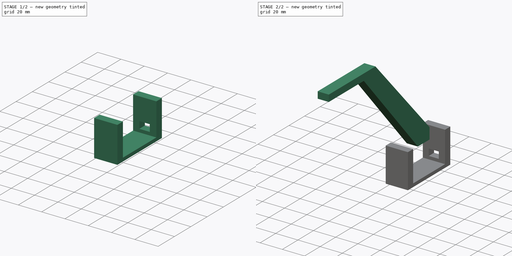
[diagram: build sequence overview — one tinted view per stage of 2, left to right]
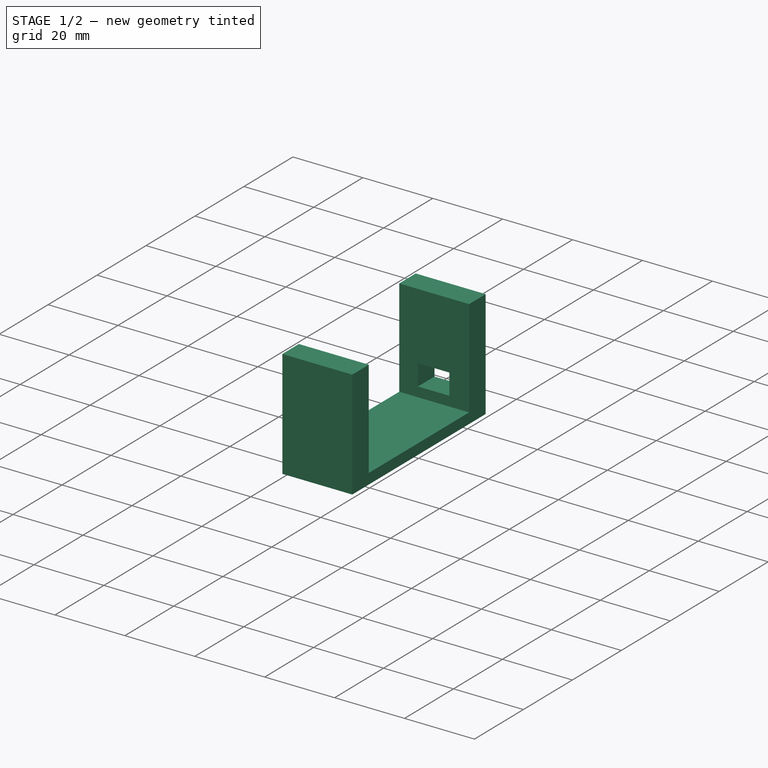
[diagram: stage 1 of 2 — iso view after this stage's code; geometry added in this stage tinted green]
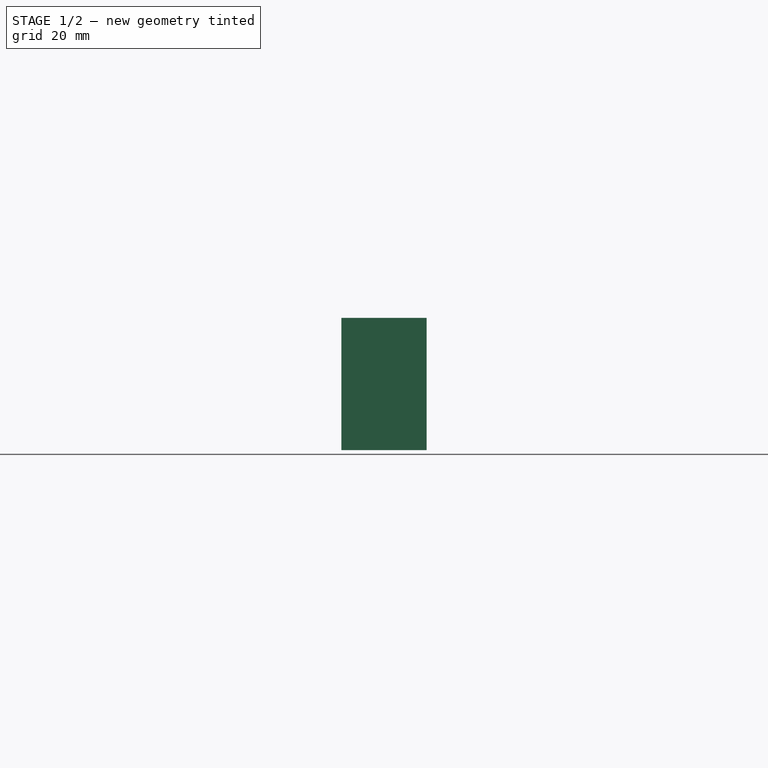
[diagram: stage 1 of 2 — front view after this stage's code; geometry added in this stage tinted green]
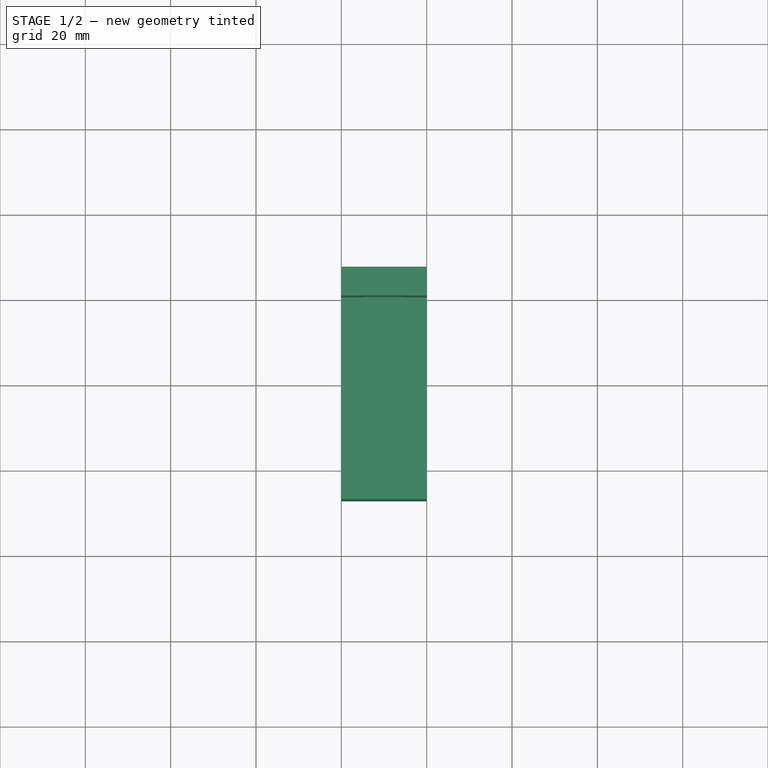
[diagram: stage 1 of 2 — top view after this stage's code; geometry added in this stage tinted green]
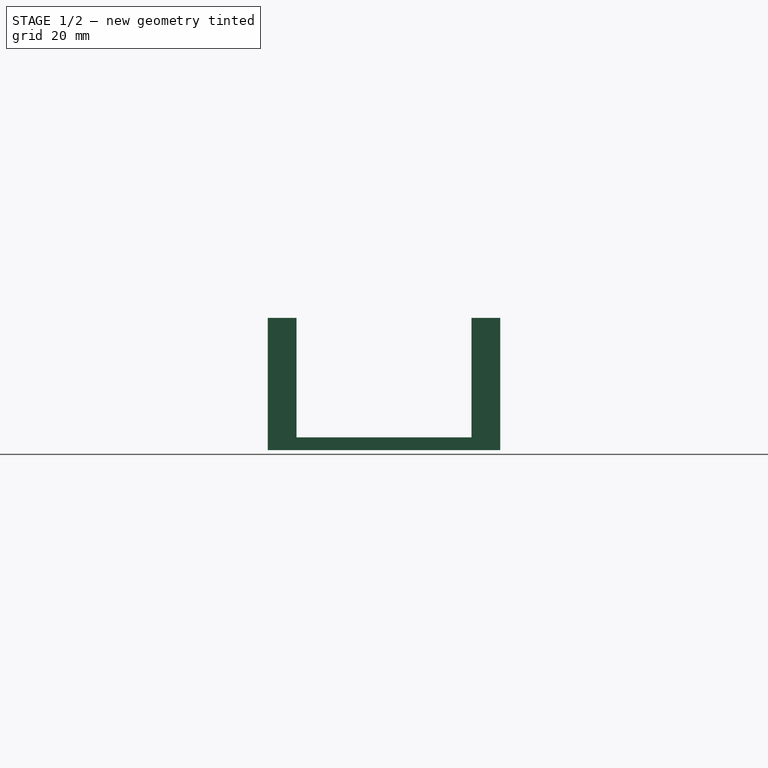
[diagram: stage 1 of 2 — right view after this stage's code; geometry added in this stage tinted green]
FCSTD DOCUMENT  (FreeCAD 0.19R24366 (Git))
Label: internalstructure_v2
License: All rights reserved
LicenseURL: http://en.wikipedia.org/wiki/All_rights_reserved
objects: Sketcher::SketchObject×4, PartDesign::Pad×2, PartDesign::Body×2, App::Part×2, PartDesign::Pocket×2
note: 14 computed .brp shape members not serialized (recipe doc carries the construction recipe); baked Part::Feature solids carry a one-line shape summary decoded from their .brp

FEATURE [PartDesign::Body] Body  label="TriangleConnectorBody"
  Group = -> [Sketch,Pad]
  Origin = -> Origin001
  Tip = -> Pad
FEATURE [App::Part] Part  label="TriangleConnector"
  Group = -> [Body]
  Origin = -> Origin
FEATURE [Sketcher::SketchObject] Sketch001  label="ServoHolder"
  FullyConstrained = false
  MapMode = 4
  Placement = pos=(0,0,0) rot=(0.57735,0.57735,0.57735;2.0944rad)
  sketch-geometry (8):
    g0: LineSegment StartX=-27.0989 StartY=-22.5482 StartZ=0 EndX=27.4011 EndY=-22.5482 EndZ=0
    g1: LineSegment StartX=20.6511 StartY=-19.5482 StartZ=0 EndX=20.6511 EndY=8.45178 EndZ=0
    g2: LineSegment StartX=20.6511 StartY=8.45178 StartZ=0 EndX=27.4011 EndY=8.45178 EndZ=0
    g3: LineSegment StartX=-20.3489 StartY=-19.5482 StartZ=0 EndX=-20.3489 EndY=8.45178 EndZ=0
    g4: LineSegment StartX=-20.3489 StartY=8.45178 StartZ=0 EndX=-27.0989 EndY=8.45178 EndZ=0
    g5: LineSegment StartX=20.6511 StartY=-19.5482 StartZ=0 EndX=-20.3489 EndY=-19.5482 EndZ=0
    g6: LineSegment StartX=-27.0989 StartY=8.45178 StartZ=0 EndX=-27.0989 EndY=-22.5482 EndZ=0
    g7: LineSegment StartX=27.4011 StartY=8.45178 StartZ=0 EndX=27.4011 EndY=-22.5482 EndZ=0
  constraints (22):
    c: Horizontal(g0)
    c: Coincident(g1,g2)
    c: Horizontal(g2)
    c: Vertical(g1)
    c: Coincident(g3,g4)
    c: Horizontal(g4)
    c: Vertical(g3)
    c: Coincident(g5,g1)
    c: Coincident(g5,g3)
    c: Horizontal(g5)
    c: Coincident(g6,g4)
    c: Coincident(g6,g0)
    c: Vertical(g6)
    c: Coincident(g7,g2)
    c: Coincident(g7,g0)
    c: Vertical(g7)
    c: DistanceX(g0,g0) = 54.5
    c: DistanceX(g5,g5) = 41
    c: Equal(g4,g2)
    c: Horizontal(g3,g1)
    c: DistanceY(g0,g1) = 3
    c: DistanceY(g1,g1) = 28
FEATURE [PartDesign::Pad] Pad001  label="ExtrudeServoHolder"
  Direction = (1,1,1)
  Length = 20
  Length2 = 100
  Placement = pos=(0,0,0) rot=(0.57735,0.57735,0.57735;2.0944rad)
  Profile = -> Sketch001
  Type = 0
FEATURE [Sketcher::SketchObject] Sketch003  label="WireHoleSketch"
  FullyConstrained = false
  Placement = pos=(0,27.4011,0) rot=(0,0.707107,0.707107;3.14159rad)
  sketch-geometry (4):
    g0: LineSegment StartX=-5.36505 StartY=-10.7623 StartZ=0 EndX=-14.3651 EndY=-10.7623 EndZ=0
    g1: LineSegment StartX=-14.3651 StartY=-10.7623 StartZ=0 EndX=-14.3651 EndY=-16.7623 EndZ=0
    g2: LineSegment StartX=-14.3651 StartY=-16.7623 StartZ=0 EndX=-5.36505 EndY=-16.7623 EndZ=0
    g3: LineSegment StartX=-5.36505 StartY=-16.7623 StartZ=0 EndX=-5.36505 EndY=-10.7623 EndZ=0
  constraints (10):
    c: Coincident(g1,g2)
    c: Coincident(g2,g3)
    c: Coincident(g3,g0)
    c: Horizontal(g0)
    c: Horizontal(g2)
    c: Vertical(g1)
    c: Vertical(g3)
    c: Coincident(g1,g0)
    c: DistanceX(g0,g0) = 9
    c: DistanceY(g1,g1) = 6
FEATURE [PartDesign::Pocket] Pocket  label="ServoHolder001"
  BaseFeature = -> Pad001
  Length = 8
  Length2 = 100
  Placement = pos=(0,0,0) rot=(0.57735,0.57735,0.57735;2.0944rad)
  Profile = -> Sketch003
  Type = 0
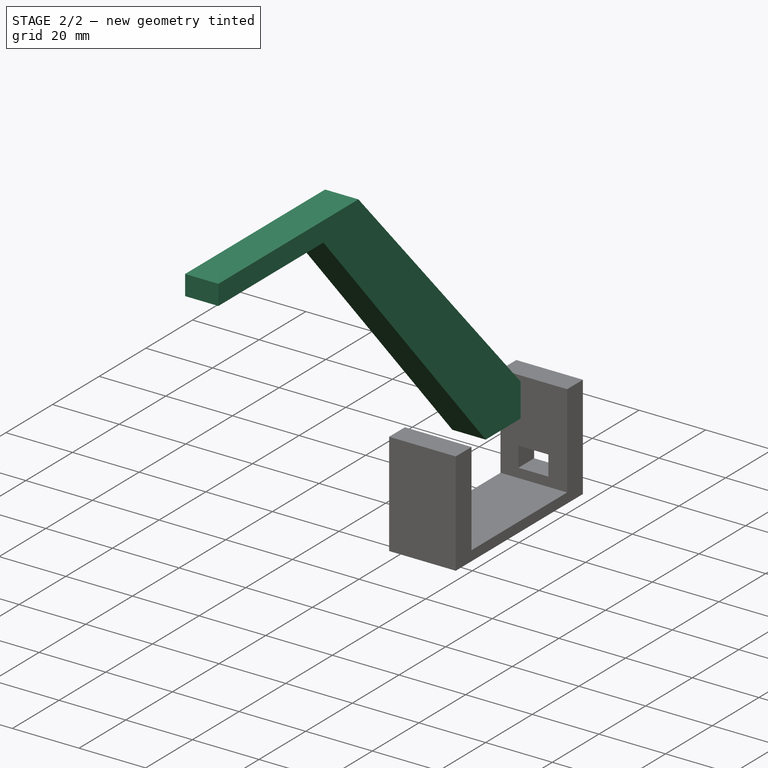
[diagram: stage 2 of 2 — iso view after this stage's code; geometry added in this stage tinted green]
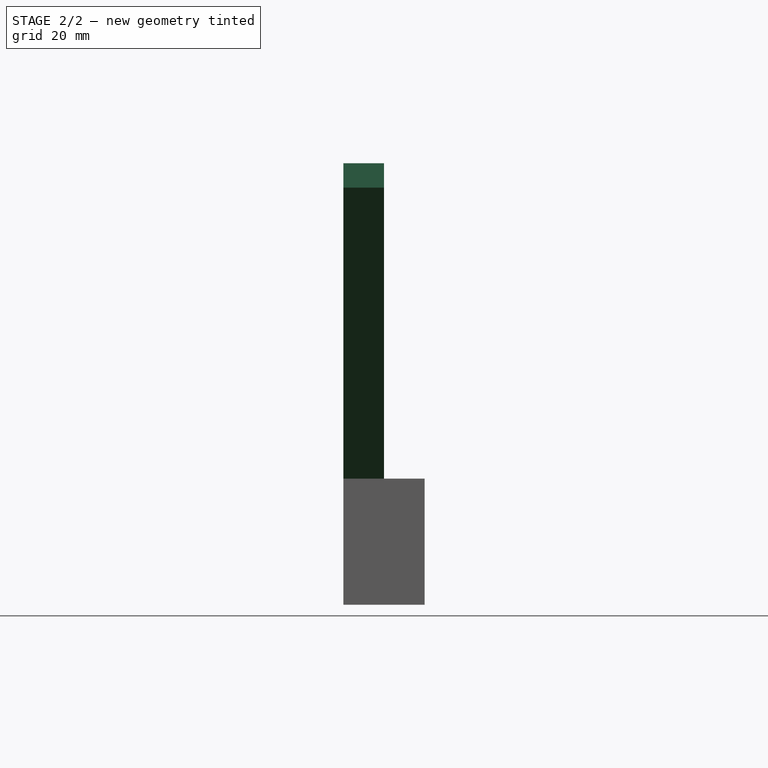
[diagram: stage 2 of 2 — front view after this stage's code; geometry added in this stage tinted green]
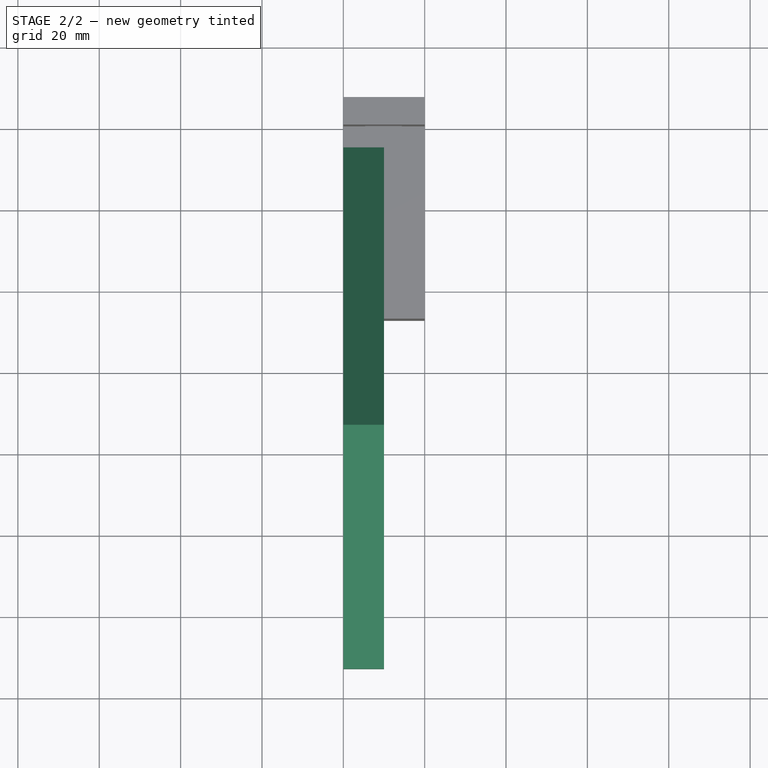
[diagram: stage 2 of 2 — top view after this stage's code; geometry added in this stage tinted green]
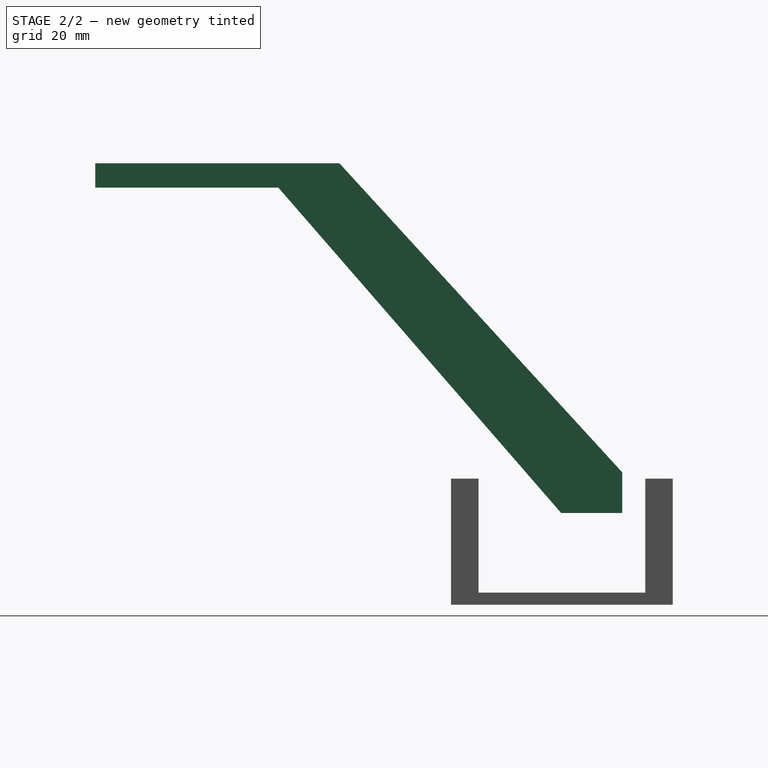
[diagram: stage 2 of 2 — right view after this stage's code; geometry added in this stage tinted green]
FEATURE [Sketcher::SketchObject] Sketch
  FullyConstrained = true
  MapMode = 5
  Placement = pos=(0,0,0) rot=(0.57735,0.57735,0.57735;2.0944rad)
  Support = -> [YZ_Plane001]
  sketch-geometry (7):
    g0: LineSegment StartX=0 StartY=0 StartZ=0 EndX=15 EndY=0 EndZ=0
    g1: LineSegment StartX=15 StartY=0 StartZ=0 EndX=15 EndY=10 EndZ=0
    g2: LineSegment StartX=15 StartY=10 StartZ=0 EndX=-54.5429 EndY=86 EndZ=0
    g3: LineSegment StartX=-54.5429 StartY=86 StartZ=0 EndX=-114.543 EndY=86 EndZ=0
    g4: LineSegment StartX=-69.5429 StartY=80 StartZ=0 EndX=0 EndY=0 EndZ=0
    g5: LineSegment StartX=-69.5429 StartY=80 StartZ=0 EndX=-114.543 EndY=80 EndZ=0
    g6: LineSegment StartX=-114.543 StartY=80 StartZ=0 EndX=-114.543 EndY=86 EndZ=0
  constraints (20):
    c: Coincident(g0,g-1)
    c: PointOnObject(g0,g-1)
    c: Vertical(g1)
    c: Coincident(g2,g1)
    c: Coincident(g3,g2)
    c: Horizontal(g3)
    c: Coincident(g4,g0)
    c: DistanceY(g0,g4) = 80
    c: Coincident(g1,g0)
    c: DistanceX(g0,g0) = 15
    c: DistanceY(g1,g1) = 10
    c: DistanceY(g4,g3) = 6
    c: Coincident(g5,g4)
    c: Horizontal(g5)
    c: Coincident(g6,g3)
    c: Vertical(g6)
    c: DistanceX(g3,g3) = 60
    c: Coincident(g6,g5)
    c: DistanceX(g4,g2) = 15
    c: Angle(g0,g4) = 2.28638
FEATURE [PartDesign::Pad] Pad
  Direction = (1,1,1)
  Length = 10
  Length2 = 100
  Placement = pos=(0,0,0) rot=(0.57735,0.57735,0.57735;2.0944rad)
  Profile = -> Sketch
  Type = 0
FEATURE [Sketcher::SketchObject] Sketch002  label="HorizontalSupportHole"
  FullyConstrained = false
  MapMode = 5
  Placement = pos=(0,0,0) rot=(0.57735,0.57735,-0.57735;4.18879rad)
  Support = -> [Pocket]
  sketch-geometry (8):
    g0: LineSegment StartX=-25.8969 StartY=20.9931 StartZ=0 EndX=-21.6969 EndY=20.9931 EndZ=0
    g1: LineSegment StartX=-21.6969 StartY=20.9931 StartZ=0 EndX=-21.6969 EndY=16.7931 EndZ=0
    g2: LineSegment StartX=-21.6969 StartY=16.7931 StartZ=0 EndX=-25.8969 EndY=16.7931 EndZ=0
    g3: LineSegment StartX=-25.8969 StartY=16.7931 StartZ=0 EndX=-25.8969 EndY=20.9931 EndZ=0
    g4: LineSegment StartX=26.0415 StartY=16.7931 StartZ=0 EndX=21.8415 EndY=16.7931 EndZ=0
    g5: LineSegment StartX=21.8415 StartY=16.7931 StartZ=0 EndX=21.8415 EndY=20.9931 EndZ=0
    g6: LineSegment StartX=21.8415 StartY=20.9931 StartZ=0 EndX=26.0415 EndY=20.9931 EndZ=0
    g7: LineSegment StartX=26.0415 StartY=20.9931 StartZ=0 EndX=26.0415 EndY=16.7931 EndZ=0
  constraints (21):
    c: Coincident(g0,g1)
    c: Coincident(g1,g2)
    c: Coincident(g2,g3)
    c: Coincident(g3,g0)
    c: Horizontal(g0)
    c: Horizontal(g2)
    c: Vertical(g1)
    c: Vertical(g3)
    c: Equal(g0,g1)
    c: DistanceY(g1,g1) = 4.2
    c: Coincident(g4,g5)
    c: Coincident(g5,g6)
    c: Coincident(g6,g7)
    c: Coincident(g7,g4)
    c: Horizontal(g4)
    c: Horizontal(g6)
    c: Vertical(g5)
    c: Vertical(g7)
    c: Equal(g4,g5)
    c: DistanceY(g5,g5) = 4.2  'support_width'
    c: Horizontal(g4,g1)
FEATURE [PartDesign::Pocket] Pocket001  label="SupportPocket"
  BaseFeature = -> Pocket
  Length = 5
  Length2 = 100
  Placement = pos=(0,0,0) rot=(0.57735,0.57735,0.57735;2.0944rad)
  Profile = -> Sketch002
  Type = 0
FEATURE [PartDesign::Body] Body001
  Group = -> [Sketch003,Sketch001,Pad001,Pocket,Sketch002,Pocket001]
  Origin = -> Origin002
  Tip = -> Pocket001
FEATURE [App::Part] Part001  label="ServoHolderPart"
  Group = -> [Body001]
  Origin = -> Origin003
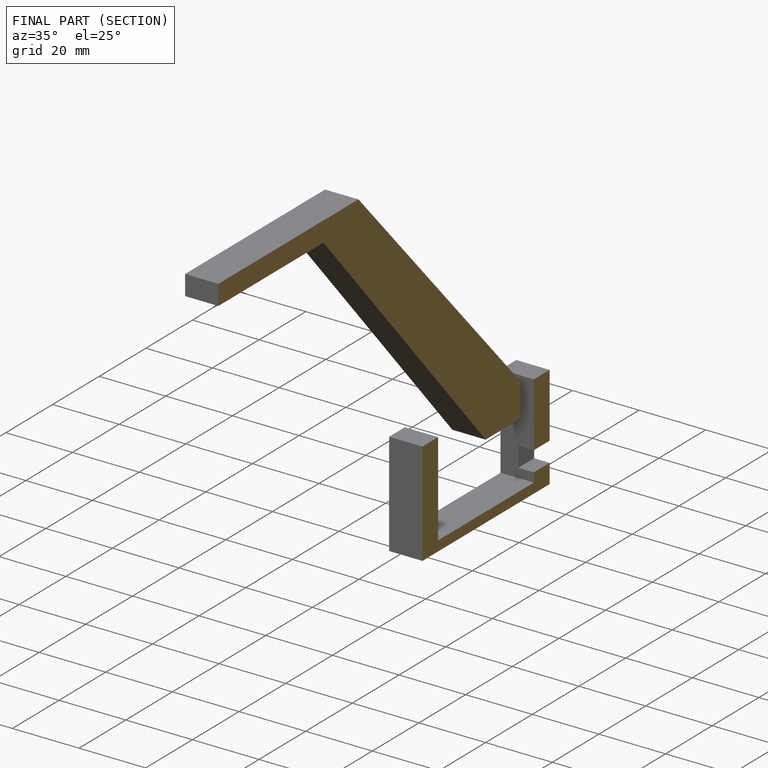
[diagram: finished part — half-section view (interior)]
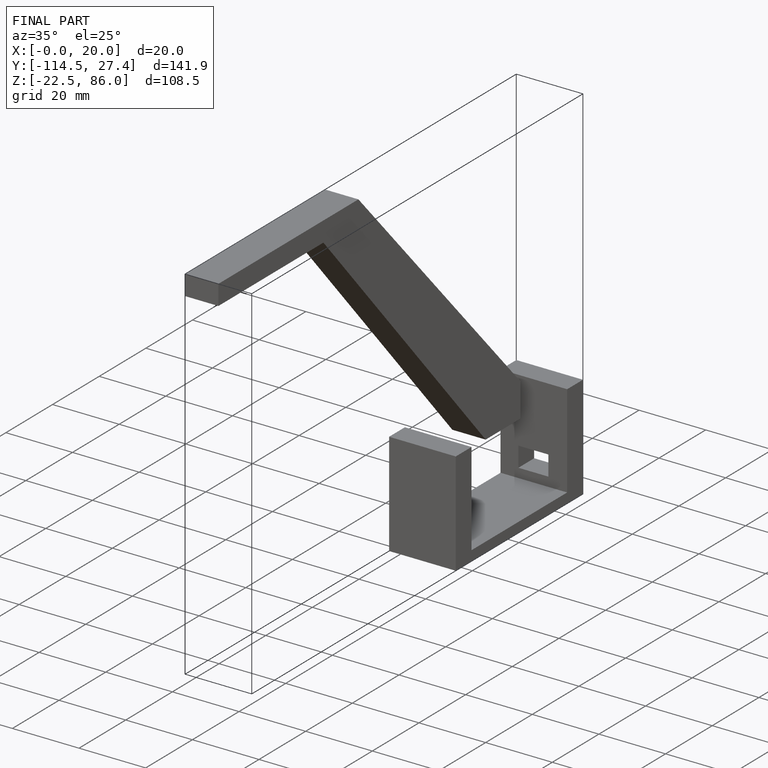
[diagram: finished part — iso view with bounding-box wireframe]
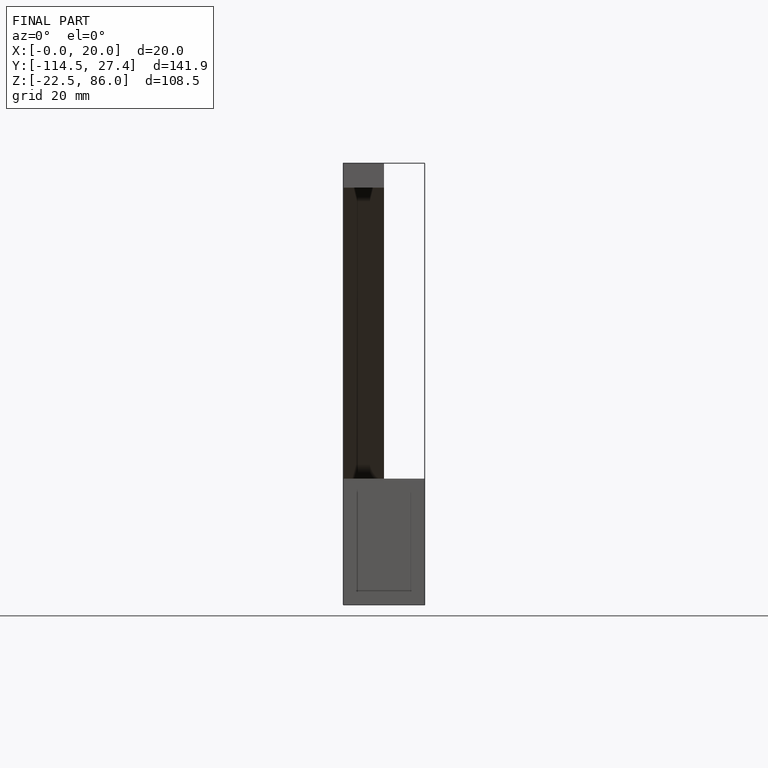
[diagram: finished part — front view with bounding-box wireframe]
